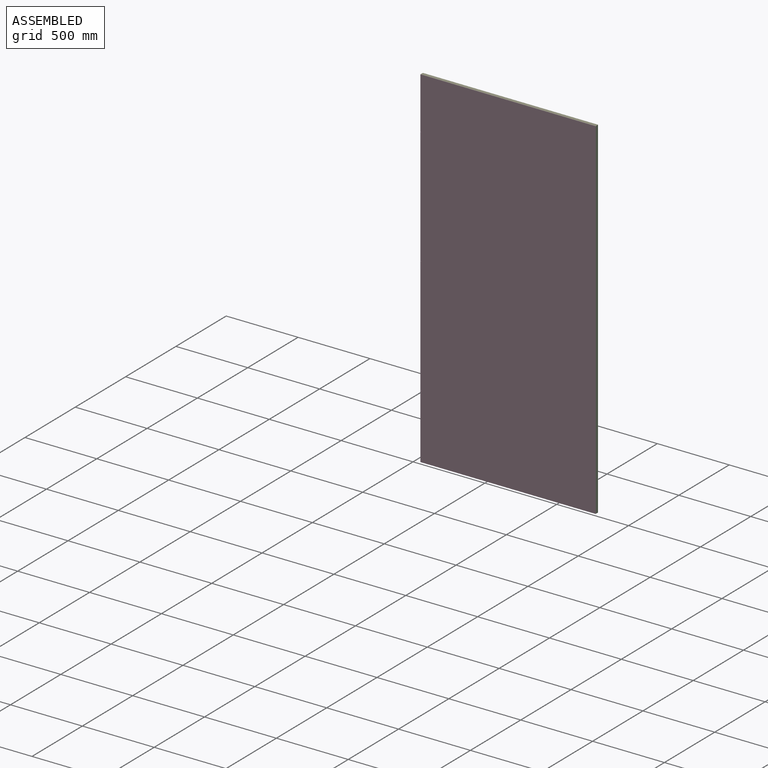
[diagram: assembled view]
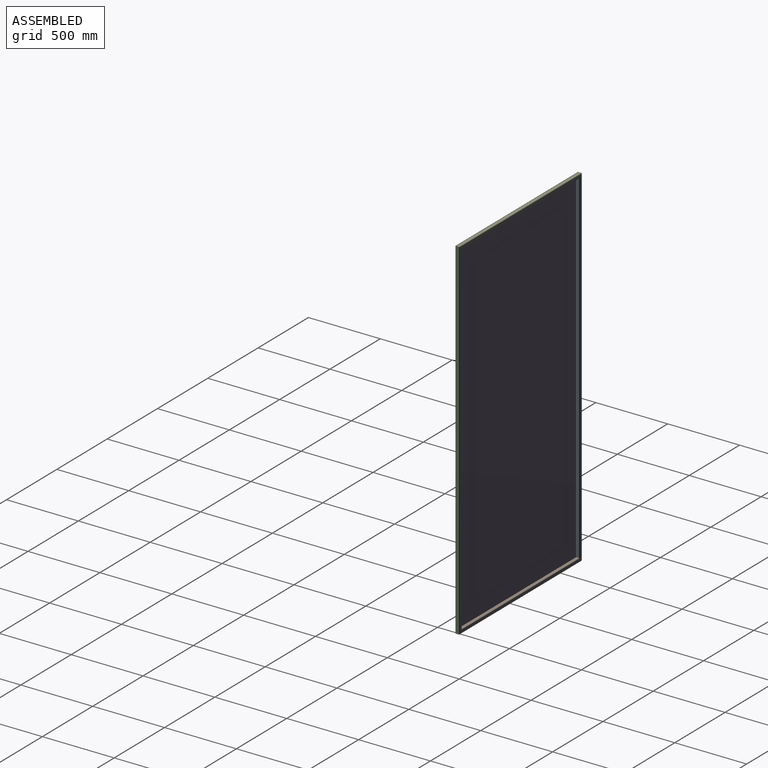
[diagram: assembled view, second angle]
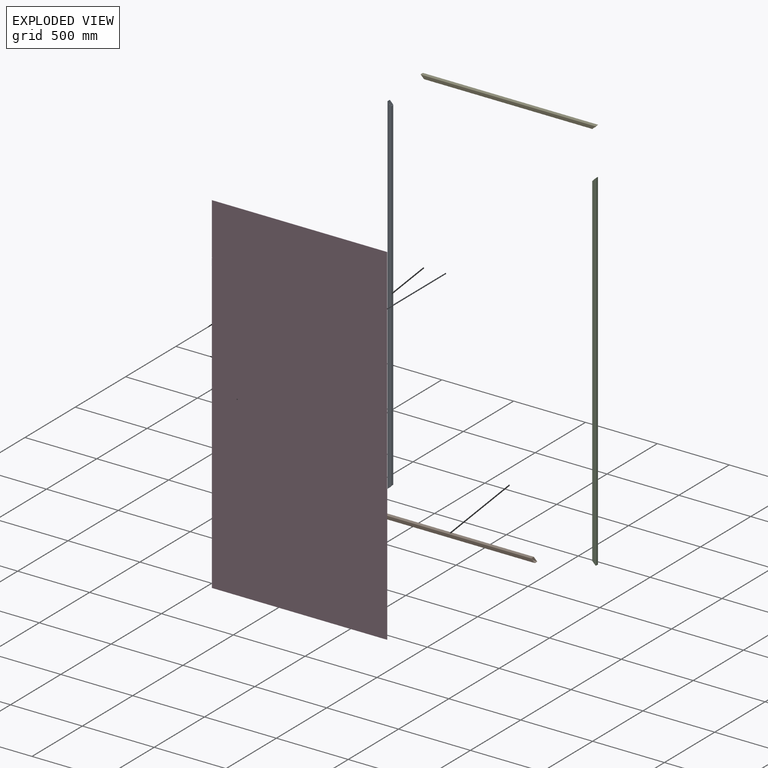
[diagram: exploded view]
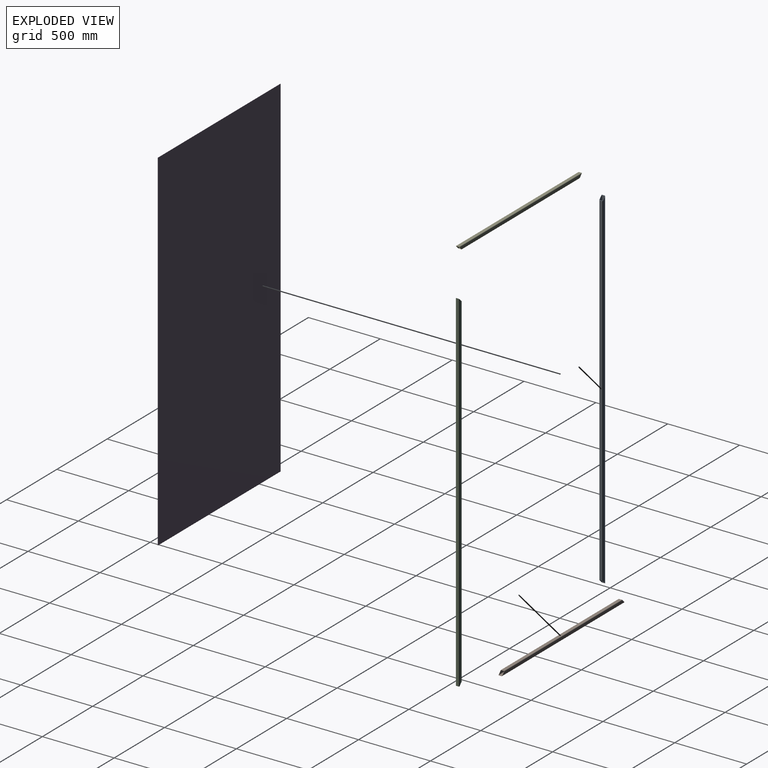
[diagram: exploded view, second angle]
ASSEMBLY  parts=5 mates=4
PART A: 18 faces, bbox 25.4x25.4x2438.4 mm
  f0: plane 25.4x25.4mm, normal (-0.71,0,-0.71), area 203.1mm2, adj f1,f2,f3,f4,f6,f7,f8,f9
  f1: plane 2387.6x19.05mm, normal (-1,0,0), area 45483.8mm2, adj f0,f5,f6,f7
  f2: plane 2432.05x19.05mm, normal (0,-1,0), area 45967.6mm2, adj f0,f5,f7,f8
  f3: plane 2432.05x19.05mm, normal (0,1,0), area 45967.6mm2, adj f0,f5,f6,f9
  f4: plane 2438.4x19.05mm, normal (1,0,0), area 46451.5mm2, adj f0,f5,f8,f9
  f5: plane 25.4x25.4mm, normal (-0.71,0,0.71), area 203.1mm2, adj f1,f2,f3,f4,f6,f7,f8,f9
  f6: cylinder r=3.17mm len=2393.95mm, axis (0,0,-1), area 11919.1mm2, adj f0,f1,f3,f5
  f7: cylinder r=3.17mm len=2393.95mm, axis (0,0,1), area 11919.1mm2, adj f0,f1,f2,f5
  f8: cylinder r=3.17mm len=2438.4mm, axis (0,0,-1), area 12149.5mm2, adj f0,f2,f4,f5
  f9: cylinder r=3.17mm len=2438.4mm, axis (0,0,1), area 12149.5mm2, adj f0,f3,f4,f5
  f10: plane 2390.75x19.05mm, normal (1,0,0), area 45543.8mm2, adj f0,f5,f14,f15
  f11: plane 2432.05x19.05mm, normal (0,1,0), area 45967.6mm2, adj f0,f5,f15,f16
  f12: plane 2432.05x19.05mm, normal (0,-1,0), area 45967.6mm2, adj f0,f5,f14,f17
  f13: plane 2435.25x19.05mm, normal (-1,0,0), area 46391.5mm2, adj f0,f5,f16,f17
  f14: cylinder r=1.6mm len=2393.95mm, axis (0,0,-1), area 6012.3mm2, adj f0,f5,f10,f12
  f15: cylinder r=1.6mm len=2393.95mm, axis (0,0,1), area 6012.3mm2, adj f0,f5,f10,f11
  f16: cylinder r=1.6mm len=2435.25mm, axis (0,0,-1), area 6118.3mm2, adj f0,f5,f11,f13
  f17: cylinder r=1.6mm len=2435.25mm, axis (0,0,1), area 6118.3mm2, adj f0,f5,f12,f13
PART B: 18 faces, bbox 1219.2x25.4x25.4 mm
  f0: plane 1168.4x19.05mm, normal (0,0,1), area 22258mm2, adj f4,f5,f6,f9
  f1: plane 1212.85x19.05mm, normal (0,-1,0), area 22741.9mm2, adj f4,f5,f6,f7
  f2: plane 1212.85x19.05mm, normal (0,1,0), area 22741.9mm2, adj f4,f5,f8,f9
  f3: plane 1219.2x19.05mm, normal (0,0,-1), area 23225.8mm2, adj f4,f5,f7,f8
  f4: plane 25.4x25.4mm, normal (0.71,0,0.71), area 203.1mm2, adj f0,f1,f2,f3,f6,f7,f8,f9
  f5: plane 25.4x25.4mm, normal (-0.71,0,0.71), area 203.1mm2, adj f0,f1,f2,f3,f6,f7,f8,f9
  f6: cylinder r=3.17mm len=1174.75mm, axis (1,0,0), area 5838.6mm2, adj f0,f1,f4,f5
  f7: cylinder r=3.17mm len=1219.2mm, axis (-1,0,0), area 6069mm2, adj f1,f3,f4,f5
  f8: cylinder r=3.17mm len=1219.2mm, axis (1,0,0), area 6069mm2, adj f2,f3,f4,f5
  f9: cylinder r=3.17mm len=1174.75mm, axis (-1,0,0), area 5838.6mm2, adj f0,f2,f4,f5
  f10: plane 1171.55x19.05mm, normal (0,0,-1), area 22318mm2, adj f4,f5,f14,f17
  f11: plane 1212.85x19.05mm, normal (0,1,0), area 22741.9mm2, adj f4,f5,f14,f15
  f12: plane 1212.85x19.05mm, normal (0,-1,0), area 22741.9mm2, adj f4,f5,f16,f17
  f13: plane 1216.05x19.05mm, normal (0,0,1), area 23165.8mm2, adj f4,f5,f15,f16
  f14: cylinder r=1.6mm len=1174.75mm, axis (1,0,0), area 2947.7mm2, adj f4,f5,f10,f11
  f15: cylinder r=1.6mm len=1216.05mm, axis (-1,0,0), area 3053.7mm2, adj f4,f5,f11,f13
  f16: cylinder r=1.6mm len=1216.05mm, axis (1,0,0), area 3053.7mm2, adj f4,f5,f12,f13
  f17: cylinder r=1.6mm len=1174.75mm, axis (-1,0,0), area 2947.7mm2, adj f4,f5,f10,f12
PART C: same geometry as A
PART D: 18 faces, bbox 1219.2x7.1x2438.4 mm
  f0: plane 50.8x5.79mm, normal (0.78,0.63,0), area 378.3mm2, adj f1,f2,f3,f12
  f1: plane 50.8x5.79mm, normal (-0.91,0.41,0), area 322.6mm2, adj f0,f2,f3,f8
  f2: plane 7.3x5.79mm, normal (0,0,-1), area 21.1mm2, adj f0,f1,f8
  f3: plane 7.3x5.79mm, normal (0,0,1), area 21.1mm2, adj f0,f1,f8
  f4: plane 50.8x5.79mm, normal (0.78,0.63,0), area 378.3mm2, adj f5,f6,f7,f12
  f5: plane 50.8x5.79mm, normal (-0.91,0.41,0), area 322.6mm2, adj f4,f6,f7,f8
  f6: plane 7.3x5.79mm, normal (0,0,-1), area 21.1mm2, adj f4,f5,f8
  f7: plane 7.3x5.79mm, normal (0,0,1), area 21.1mm2, adj f4,f5,f8
  f8: plane 2438.4x1219.2mm, normal (0,1,0), area 2971784.7mm2, adj f1,f2,f3,f5,f6,f7,f9,f10
  f9: plane 1219.2x1.27mm, normal (0,0,1), area 1548.4mm2, adj f8,f10,f12,f13
  f10: plane 2438.4x1.27mm, normal (-1,0,0), area 3096.8mm2, adj f8,f9,f11,f13
  f11: plane 1219.2x1.27mm, normal (0,0,-1), area 1548.4mm2, adj f8,f10,f12,f13
  f12: plane 2438.4x1.27mm, normal (1,0,0), area 3096.8mm2, adj f0,f4,f8,f9,f11,f13,f14
  f13: plane 2438.4x1219.2mm, normal (0,-1,0), area 2972897.3mm2, adj f9,f10,f11,f12
  f14: plane 50.8x5.79mm, normal (0.78,0.63,0), area 378.3mm2, adj f12,f15,f16,f17
  f15: plane 50.8x5.79mm, normal (-0.91,0.41,0), area 322.6mm2, adj f8,f14,f16,f17
  f16: plane 7.3x5.79mm, normal (0,0,1), area 21.1mm2, adj f8,f14,f15
  f17: plane 7.3x5.79mm, normal (0,0,-1), area 21.1mm2, adj f8,f14,f15
PART E: same geometry as B
PLACE A rot(axis=(0,0,1),180deg) t=(107.76,1147.18,1910.83)mm
PLACE B t=(-391.24,1172.9,-480.53)mm
PLACE C rot(axis=(-0.72,-0.58,0.39),0deg) t=(328.97,1289.1,1910.83)mm
PLACE D rot(axis=(0,0,1),180deg) t=(770.22,1204.17,-466.88)mm
PLACE E rot(axis=(0,1,0),180deg) t=(827.96,1172.9,1863.79)mm
MATE fastened C.f0 <-> B.f4  axis (-0.71,0,-0.71) through (815.26,1218.14,-514.87)mm
MATE fastened C.f5 <-> E.f5  axis (-0.71,0,0.71) through (827.96,1218.14,1910.83)mm
MATE fastened D.f13 <-> E.f1  axis (0,1,0) through (218.36,1205.44,1910.83)mm
MATE fastened A.f5 <-> E.f4  axis (0.71,0,0.71) through (-391.24,1218.14,1910.83)mm
